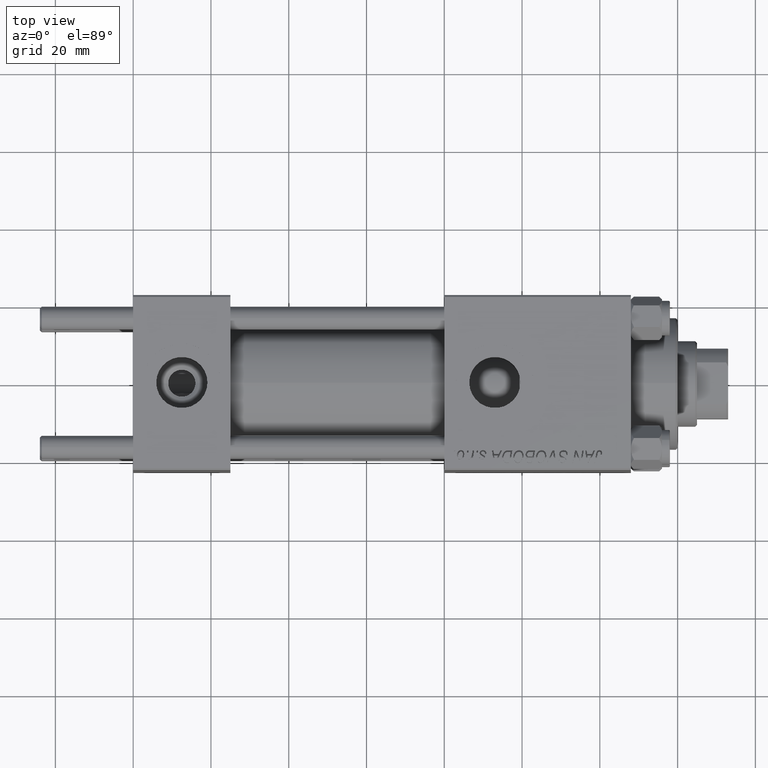
[diagram: clean part render]
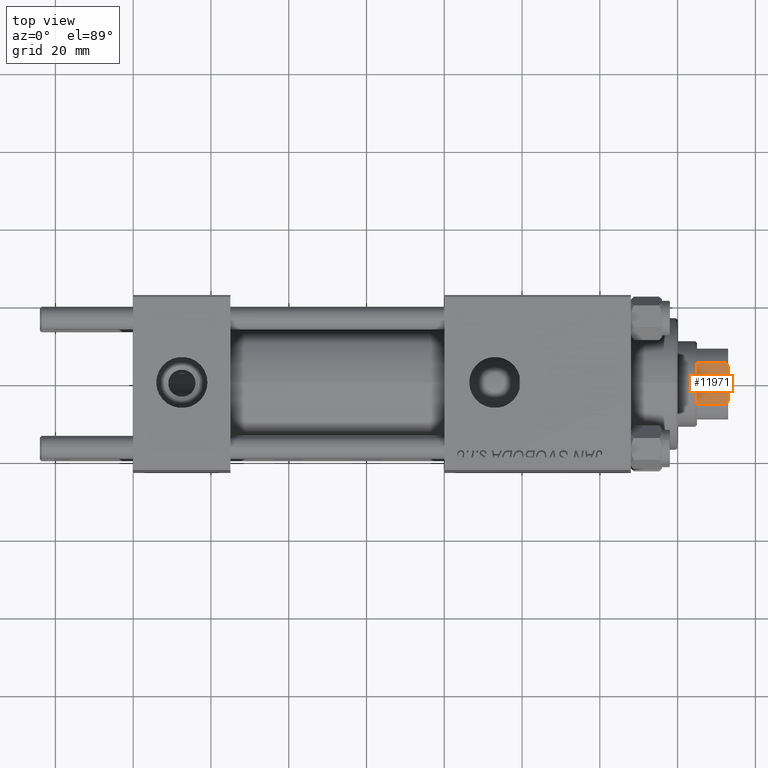
[diagram: same view with one face highlighted and labeled with its STEP entity id]
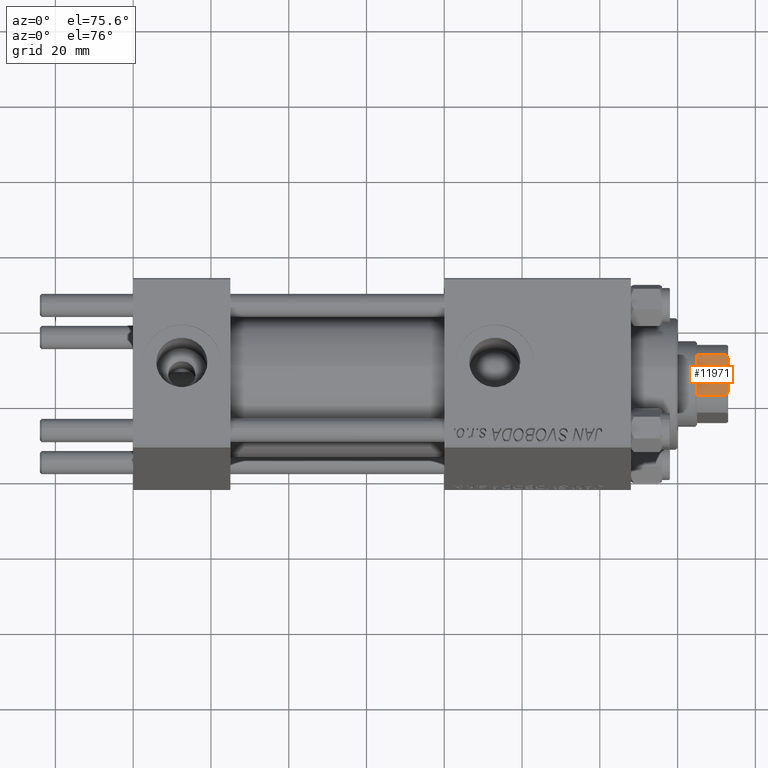
[diagram: same view with one face highlighted and labeled with its STEP entity id]
A machine part, top view. The second image highlights one B-rep face of the part: STEP entity #11971.
A second angle (auxiliary view) of the same face is appended — the face is thin or edge-on in the first view.
In plain terms, the highlighted planar face has unit normal (-0, 0, -1).
Its self-contained STEP definition (entity closure, byte-faithful):
#150 = DIRECTION ( 'NONE',  ( 1.000000000000000000, 0.000000000000000000, 0.000000000000000000 ) ) ;
#1089 = B_SPLINE_CURVE_WITH_KNOTS ( 'NONE', 3,
 ( #24351, #39784, #38779, #5105 ),
 .UNSPECIFIED., .F., .F.,
 ( 4, 4 ),
 ( 0.000000000000000000, 0.001162453897363239412 ),
 .UNSPECIFIED. ) ;
#1790 = VERTEX_POINT ( 'NONE', #20084 ) ;
#3432 = CARTESIAN_POINT ( 'NONE',  ( -9.000000000000001776, -9.000000000000001776, 120.0000000000000000 ) ) ;
#5105 = CARTESIAN_POINT ( 'NONE',  ( -5.408326913195988794, -8.999999999999998224, 127.4999999999999716 ) ) ;
#6189 = CARTESIAN_POINT ( 'NONE',  ( 4.714305797500276007, -9.000000000000001776, 127.8450817439748590 ) ) ;
#7294 = DIRECTION ( 'NONE',  ( 0.000000000000000000, 1.000000000000000000, 0.000000000000000000 ) ) ;
#8623 = LINE ( 'NONE', #42794, #30827 ) ;
#9840 = VERTEX_POINT ( 'NONE', #11451 ) ;
#10007 = EDGE_CURVE ( 'NONE', #11679, #9840, #1089, .T. ) ;
#10816 = LINE ( 'NONE', #31062, #48754 ) ;
#11101 = CARTESIAN_POINT ( 'NONE',  ( -9.000000000000001776, -9.000000000000001776, 128.0000000000000000 ) ) ;
#11451 = CARTESIAN_POINT ( 'NONE',  ( -5.408326913195988794, -8.999999999999998224, 127.4999999999999716 ) ) ;
#11590 = CARTESIAN_POINT ( 'NONE',  ( -5.408326913195988794, -8.999999999999998224, -0.001000000000001000089 ) ) ;
#11679 = VERTEX_POINT ( 'NONE', #46146 ) ;
#11971 = ADVANCED_FACE ( 'NONE', ( #45777 ), #19190, .F. ) ;
#13087 = VERTEX_POINT ( 'NONE', #34426 ) ;
#14048 = VERTEX_POINT ( 'NONE', #32940 ) ;
#15379 = VECTOR ( 'NONE', #23234, 1000.000000000000000 ) ;
#18076 = CARTESIAN_POINT ( 'NONE',  ( 4.358898943540723714, -9.000000000000001776, 128.0000000000000000 ) ) ;
#19190 = PLANE ( 'NONE',  #47746 ) ;
#20084 = CARTESIAN_POINT ( 'NONE',  ( 5.408326913195988794, -8.999999999999998224, 127.5000000000000284 ) ) ;
#20555 = EDGE_CURVE ( 'NONE', #1790, #46171, #42613, .T. ) ;
#21123 = CARTESIAN_POINT ( 'NONE',  ( 5.408326913195988794, -8.999999999999998224, 127.5000000000000284 ) ) ;
#21564 = EDGE_CURVE ( 'NONE', #13087, #1790, #10816, .T. ) ;
#23234 = DIRECTION ( 'NONE',  ( -0.000000000000000000, -0.000000000000000000, 1.000000000000000000 ) ) ;
#24351 = CARTESIAN_POINT ( 'NONE',  ( -4.358898943540635784, -9.000000000000001776, 128.0000000000000000 ) ) ;
#25691 = CARTESIAN_POINT ( 'NONE',  ( 5.063687070142465885, -8.999999999999998224, 127.6775166608139216 ) ) ;
#26895 = VECTOR ( 'NONE', #150, 1000.000000000000000 ) ;
#28900 = EDGE_LOOP ( 'NONE', ( #44128, #29690, #42835, #38678, #49873, #32261 ) ) ;
#29690 = ORIENTED_EDGE ( 'NONE', *, *, #20555, .T. ) ;
#30827 = VECTOR ( 'NONE', #47084, 1000.000000000000000 ) ;
#31062 = CARTESIAN_POINT ( 'NONE',  ( 5.408326913195988794, -8.999999999999998224, -0.001000000000001000089 ) ) ;
#32261 = ORIENTED_EDGE ( 'NONE', *, *, #42230, .T. ) ;
#32940 = CARTESIAN_POINT ( 'NONE',  ( -5.408326913195988794, -8.999999999999998224, 120.0000000000000568 ) ) ;
#34426 = CARTESIAN_POINT ( 'NONE',  ( 5.408326913195988794, -8.999999999999998224, 120.0000000000000568 ) ) ;
#35196 = CARTESIAN_POINT ( 'NONE',  ( 4.358898943540723714, -9.000000000000001776, 128.0000000000000000 ) ) ;
#35636 = EDGE_CURVE ( 'NONE', #14048, #9840, #41967, .T. ) ;
#37889 = EDGE_CURVE ( 'NONE', #11679, #46171, #8623, .T. ) ;
#38678 = ORIENTED_EDGE ( 'NONE', *, *, #10007, .T. ) ;
#38779 = CARTESIAN_POINT ( 'NONE',  ( -5.063687070142435687, -9.000000000000001776, 127.6775166608138932 ) ) ;
#39784 = CARTESIAN_POINT ( 'NONE',  ( -4.714305797500227158, -9.000000000000001776, 127.8450817439748590 ) ) ;
#41967 = LINE ( 'NONE', #11590, #15379 ) ;
#42230 = EDGE_CURVE ( 'NONE', #14048, #13087, #46461, .T. ) ;
#42613 = B_SPLINE_CURVE_WITH_KNOTS ( 'NONE', 3,
 ( #21123, #25691, #6189, #18076 ),
 .UNSPECIFIED., .F., .F.,
 ( 4, 4 ),
 ( 0.000000000000000000, 0.001162453897363137931 ),
 .UNSPECIFIED. ) ;
#42794 = CARTESIAN_POINT ( 'NONE',  ( -9.000000000000001776, -9.000000000000001776, 128.0000000000000000 ) ) ;
#42835 = ORIENTED_EDGE ( 'NONE', *, *, #37889, .F. ) ;
#44128 = ORIENTED_EDGE ( 'NONE', *, *, #21564, .T. ) ;
#45777 = FACE_OUTER_BOUND ( 'NONE', #28900, .T. ) ;
#46146 = CARTESIAN_POINT ( 'NONE',  ( -4.358898943540635784, -9.000000000000001776, 128.0000000000000000 ) ) ;
#46171 = VERTEX_POINT ( 'NONE', #35196 ) ;
#46461 = LINE ( 'NONE', #3432, #26895 ) ;
#47084 = DIRECTION ( 'NONE',  ( 1.000000000000000000, 0.000000000000000000, 0.000000000000000000 ) ) ;
#47746 = AXIS2_PLACEMENT_3D ( 'NONE', #11101, #7294, #50069 ) ;
#48754 = VECTOR ( 'NONE', #49543, 1000.000000000000000 ) ;
#49543 = DIRECTION ( 'NONE',  ( -0.000000000000000000, -0.000000000000000000, 1.000000000000000000 ) ) ;
#49873 = ORIENTED_EDGE ( 'NONE', *, *, #35636, .F. ) ;
#50069 = DIRECTION ( 'NONE',  ( 0.000000000000000000, -0.000000000000000000, 1.000000000000000000 ) ) ;